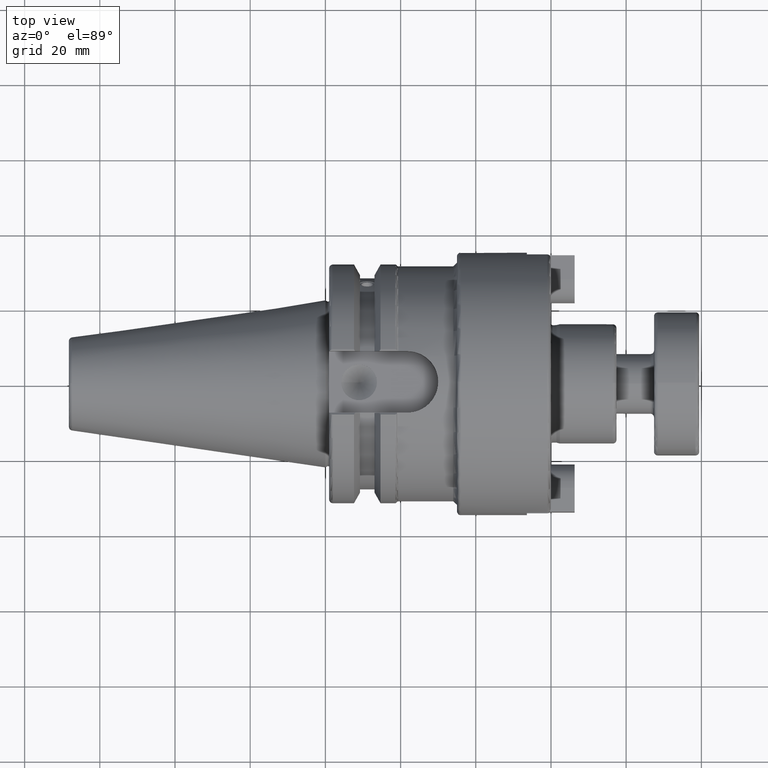
[diagram: clean part render]
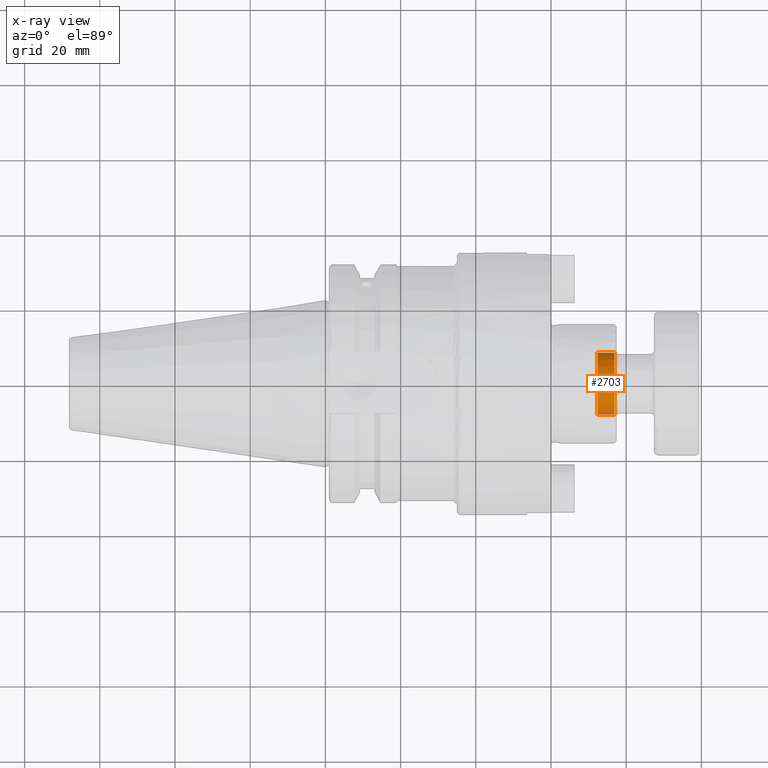
[diagram: x-ray — body ghosted, one internal face saturated and labeled with its STEP entity id]
A machine part, top view, then the same camera in x-ray: the body is ghosted and one INTERNAL B-rep face — a face not visible from any outside direction — is saturated and labeled: STEP entity #2703.
In plain terms, the highlighted cylindrical surface (bore or boss wall) has radius 8.25 mm, axis along (1, 0, 0).
Its self-contained STEP definition (entity closure, byte-faithful):
#264=FACE_OUTER_BOUND('',#431,.T.);
#431=EDGE_LOOP('',(#1940,#1941,#1942,#1943,#1944));
#618=CIRCLE('',#2998,8.24999999999998);
#619=CIRCLE('',#2999,8.24999999999998);
#622=CIRCLE('',#3004,8.24999999999998);
#776=LINE('',#4482,#949);
#949=VECTOR('',#3449,8.24999999999998);
#1189=VERTEX_POINT('',#4470);
#1190=VERTEX_POINT('',#4471);
#1193=VERTEX_POINT('',#4481);
#1481=EDGE_CURVE('',#1189,#1190,#618,.T.);
#1482=EDGE_CURVE('',#1190,#1189,#619,.T.);
#1486=EDGE_CURVE('',#1190,#1193,#776,.T.);
#1487=EDGE_CURVE('',#1193,#1193,#622,.T.);
#1940=ORIENTED_EDGE('',*,*,#1481,.F.);
#1941=ORIENTED_EDGE('',*,*,#1482,.F.);
#1942=ORIENTED_EDGE('',*,*,#1486,.T.);
#1943=ORIENTED_EDGE('',*,*,#1487,.F.);
#1944=ORIENTED_EDGE('',*,*,#1486,.F.);
#2641=CYLINDRICAL_SURFACE('',#3003,8.24999999999998);
#2703=ADVANCED_FACE('',(#264),#2641,.F.);
#2998=AXIS2_PLACEMENT_3D('',#4472,#3436,#3437);
#2999=AXIS2_PLACEMENT_3D('',#4473,#3438,#3439);
#3003=AXIS2_PLACEMENT_3D('',#4480,#3447,#3448);
#3004=AXIS2_PLACEMENT_3D('',#4483,#3450,#3451);
#3436=DIRECTION('center_axis',(-1.,0.,0.));
#3437=DIRECTION('ref_axis',(0.,-1.,0.));
#3438=DIRECTION('center_axis',(-1.,0.,0.));
#3439=DIRECTION('ref_axis',(0.,-1.,0.));
#3447=DIRECTION('center_axis',(1.,0.,0.));
#3448=DIRECTION('ref_axis',(0.,1.,0.));
#3449=DIRECTION('',(-1.,0.,0.));
#3450=DIRECTION('center_axis',(1.,0.,0.));
#3451=DIRECTION('ref_axis',(0.,0.,-1.));
#4470=CARTESIAN_POINT('',(76.924,8.24999999999998,-1.01033360929656E-15));
#4471=CARTESIAN_POINT('',(76.924,-8.24999999999998,-1.01033360929656E-15));
#4472=CARTESIAN_POINT('Origin',(76.924,0.,0.));
#4473=CARTESIAN_POINT('Origin',(76.924,0.,0.));
#4480=CARTESIAN_POINT('Origin',(74.924,0.,0.));
#4481=CARTESIAN_POINT('',(72.424,-8.24999999999998,-1.01033360929656E-15));
#4482=CARTESIAN_POINT('',(74.924,-8.24999999999998,-1.01033360929656E-15));
#4483=CARTESIAN_POINT('Origin',(72.424,0.,0.));